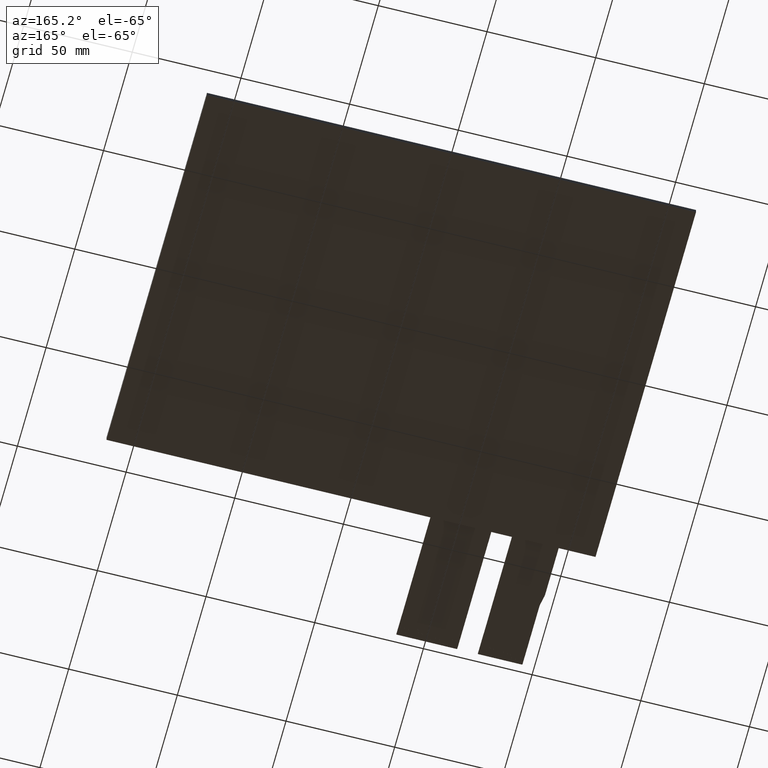
[diagram: clean part render]
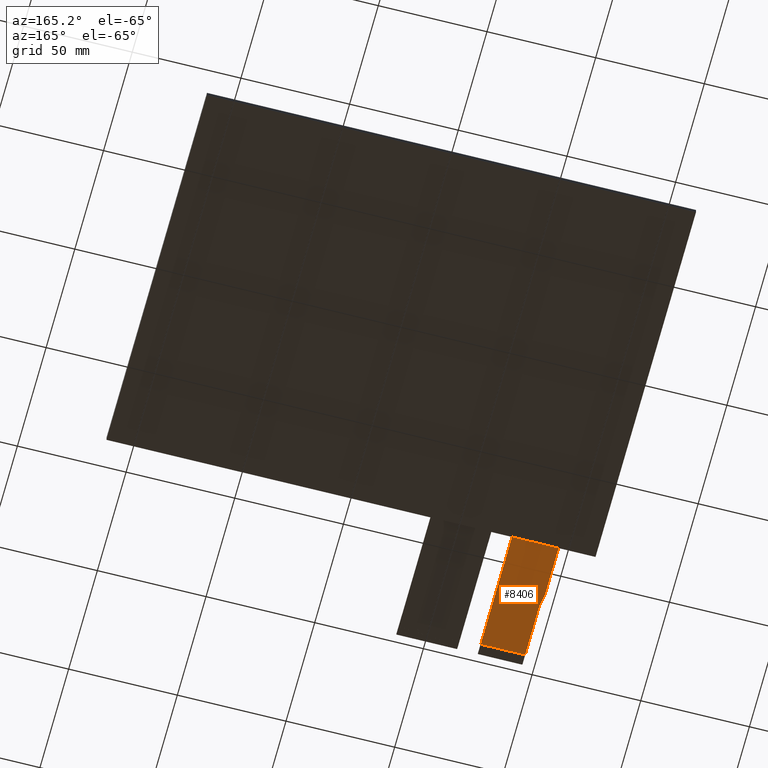
[diagram: same view with one face highlighted and labeled with its STEP entity id]
A machine part, auxiliary view. The second image highlights one B-rep face of the part: STEP entity #8406.
In plain terms, the highlighted planar face has unit normal (0, 0, -1).
Its self-contained STEP definition (entity closure, byte-faithful):
#75=PLANE('',#8850);
#492=FACE_OUTER_BOUND('',#914,.T.);
#914=EDGE_LOOP('',(#5907,#5908,#5909,#5910,#5911,#5912,#5913,#5914));
#1341=LINE('',#11399,#2577);
#1342=LINE('',#11401,#2578);
#1343=LINE('',#11403,#2579);
#1344=LINE('',#11405,#2580);
#1345=LINE('',#11407,#2581);
#1346=LINE('',#11410,#2582);
#2577=VECTOR('',#9293,10.);
#2578=VECTOR('',#9294,10.);
#2579=VECTOR('',#9295,10.);
#2580=VECTOR('',#9296,10.);
#2581=VECTOR('',#9297,10.);
#2582=VECTOR('',#9300,10.);
#3811=CIRCLE('',#8848,5.);
#3813=CIRCLE('',#8851,5.);
#3823=VERTEX_POINT('',#11389);
#3824=VERTEX_POINT('',#11390);
#3827=VERTEX_POINT('',#11398);
#3828=VERTEX_POINT('',#11400);
#3829=VERTEX_POINT('',#11402);
#3830=VERTEX_POINT('',#11404);
#3831=VERTEX_POINT('',#11406);
#3832=VERTEX_POINT('',#11408);
#4655=EDGE_CURVE('',#3823,#3824,#3811,.T.);
#4659=EDGE_CURVE('',#3823,#3827,#1341,.T.);
#4660=EDGE_CURVE('',#3828,#3827,#1342,.T.);
#4661=EDGE_CURVE('',#3828,#3829,#1343,.T.);
#4662=EDGE_CURVE('',#3829,#3830,#1344,.T.);
#4663=EDGE_CURVE('',#3830,#3831,#1345,.T.);
#4664=EDGE_CURVE('',#3832,#3831,#3813,.T.);
#4665=EDGE_CURVE('',#3832,#3824,#1346,.T.);
#5907=ORIENTED_EDGE('',*,*,#4655,.F.);
#5908=ORIENTED_EDGE('',*,*,#4659,.T.);
#5909=ORIENTED_EDGE('',*,*,#4660,.F.);
#5910=ORIENTED_EDGE('',*,*,#4661,.T.);
#5911=ORIENTED_EDGE('',*,*,#4662,.T.);
#5912=ORIENTED_EDGE('',*,*,#4663,.T.);
#5913=ORIENTED_EDGE('',*,*,#4664,.F.);
#5914=ORIENTED_EDGE('',*,*,#4665,.T.);
#8406=ADVANCED_FACE('',(#492),#75,.T.);
#8848=AXIS2_PLACEMENT_3D('',#11391,#9285,#9286);
#8850=AXIS2_PLACEMENT_3D('',#11397,#9291,#9292);
#8851=AXIS2_PLACEMENT_3D('',#11409,#9298,#9299);
#9285=DIRECTION('center_axis',(0.,0.,1.));
#9286=DIRECTION('ref_axis',(-0.995396198367179,-0.0958457525202264,0.));
#9291=DIRECTION('center_axis',(0.,0.,-1.));
#9292=DIRECTION('ref_axis',(-1.,0.,0.));
#9293=DIRECTION('',(0.,1.,0.));
#9294=DIRECTION('',(-1.,-3.15796771448933E-16,0.));
#9295=DIRECTION('',(4.44089209850063E-16,-1.,0.));
#9296=DIRECTION('',(-1.,0.,0.));
#9297=DIRECTION('',(0.,1.,0.));
#9298=DIRECTION('center_axis',(0.,0.,-1.));
#9299=DIRECTION('ref_axis',(0.995396198367179,0.0958457525202264,0.));
#9300=DIRECTION('',(-0.190808995376548,0.981627183447663,0.));
#11389=CARTESIAN_POINT('',(-96.2999999999999,-113.204000743042,-1.225));
#11390=CARTESIAN_POINT('',(-96.2081359172383,-114.158045719925,-1.225));
#11391=CARTESIAN_POINT('Origin',(-91.2999999999999,-113.204000743042,-1.225));
#11397=CARTESIAN_POINT('Origin',(-85.5499999999999,-119.1,-1.225));
#11398=CARTESIAN_POINT('',(-96.2999999999999,-89.1,-1.225));
#11399=CARTESIAN_POINT('',(-96.2999999999999,-89.1,-1.225));
#11400=CARTESIAN_POINT('',(-74.8,-89.0999999999999,-1.225));
#11401=CARTESIAN_POINT('',(13.175,-89.1,-1.225));
#11402=CARTESIAN_POINT('',(-74.7999999999999,-144.1,-1.225));
#11403=CARTESIAN_POINT('',(-74.7999999999999,-149.1,-1.225));
#11404=CARTESIAN_POINT('',(-95.2999999999999,-144.1,-1.225));
#11405=CARTESIAN_POINT('',(-80.1749999999999,-144.1,-1.225));
#11406=CARTESIAN_POINT('',(-95.2999999999999,-119.311445240988,-1.225));
#11407=CARTESIAN_POINT('',(-95.2999999999999,-118.83,-1.225));
#11408=CARTESIAN_POINT('',(-95.3918640827616,-118.357400264105,-1.225));
#11409=CARTESIAN_POINT('Origin',(-100.3,-119.311445240988,-1.225));
#11410=CARTESIAN_POINT('',(-96.2999999999999,-113.68544598403,-1.225));